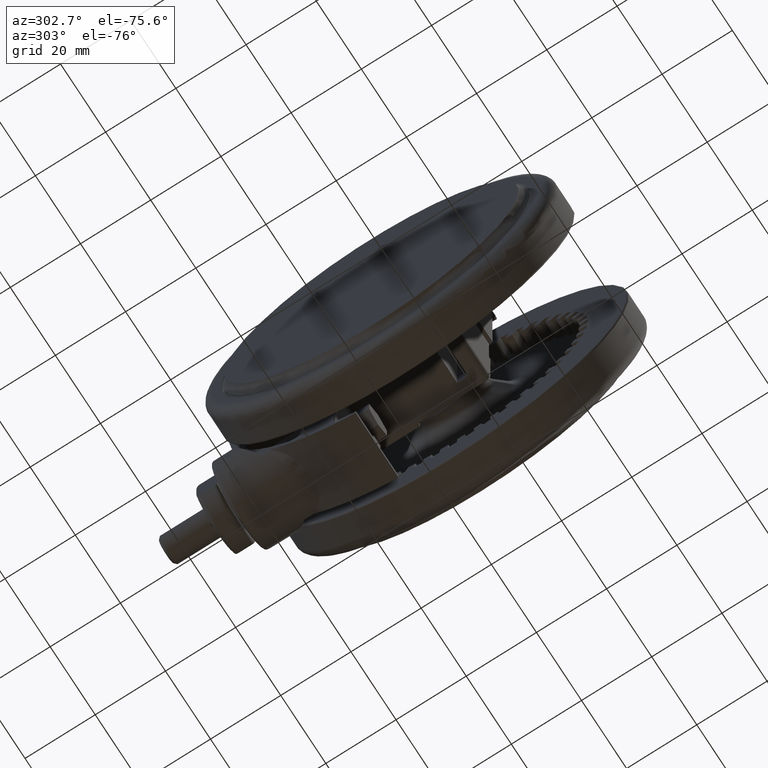
[diagram: clean part render]
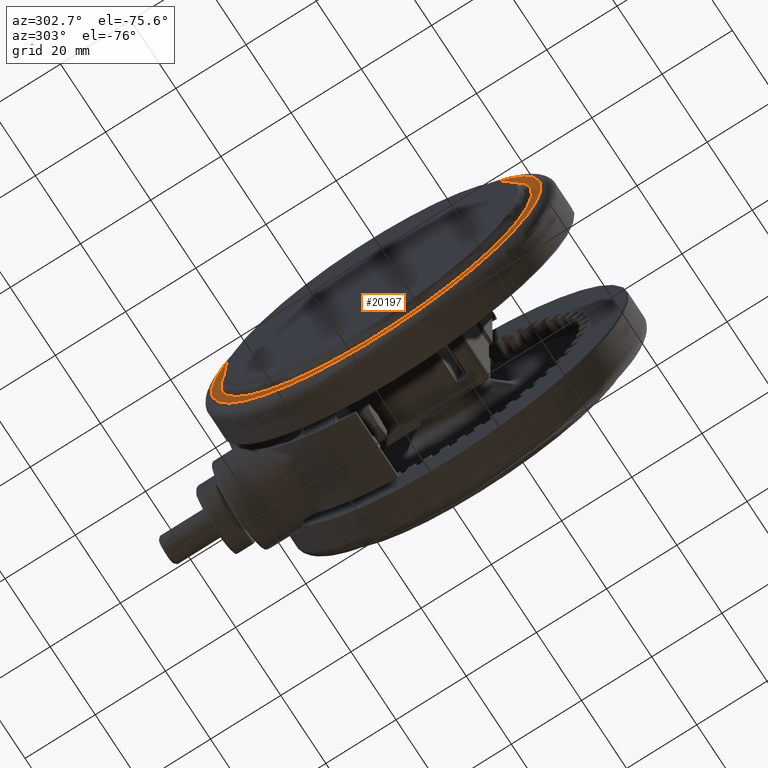
[diagram: same view with one face highlighted and labeled with its STEP entity id]
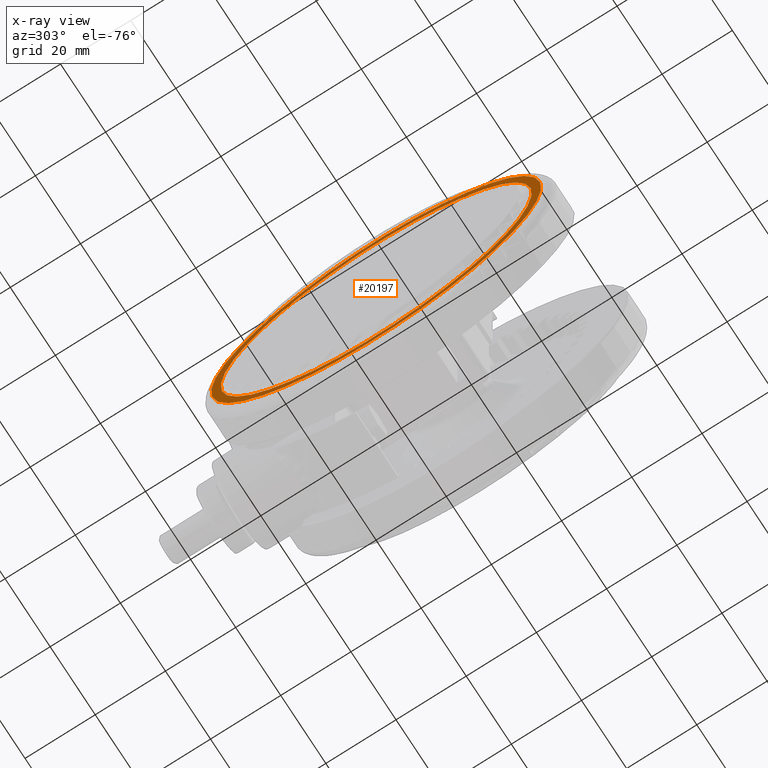
[diagram: x-ray of the same camera — body ghosted, the highlighted face saturated]
A machine part, auxiliary view. The second image highlights one B-rep face of the part: STEP entity #20197.
The next image is the same camera in x-ray: the body ghosted, the highlighted face saturated — about 0% of this face is hidden behind the body in this view.
In plain terms, the highlighted planar face has unit normal (1, -0, 0).
Its self-contained STEP definition (entity closure, byte-faithful):
#1316 = CARTESIAN_POINT ( 'NONE',  ( 1.387778780781445700E-014, -8.673617379884035500E-015, -46.49999999999994300 ) ) ;
#1468 = DIRECTION ( 'NONE',  ( -0.9587657712597810200, 0.2841974592789973700, 1.377383883340825900E-018 ) ) ;
#2839 = CARTESIAN_POINT ( 'NONE',  ( -42.47332366680828400, 12.58994744605957400, -46.49999999999995700 ) ) ;
#3015 = DIRECTION ( 'NONE',  ( 3.380642383533773200E-017, 2.202247500052102700E-016, 1.000000000000000000 ) ) ;
#5101 = DIRECTION ( 'NONE',  ( -0.9587657712597809100, 0.2841974592789973100, 0.0000000000000000000 ) ) ;
#10036 = CARTESIAN_POINT ( 'NONE',  ( 1.387778780781445700E-014, -8.673617379884035500E-015, -46.49999999999994300 ) ) ;
#10265 = VERTEX_POINT ( 'NONE', #2839 ) ;
#12357 = DIRECTION ( 'NONE',  ( -3.380642383533773200E-017, -2.202247500052102700E-016, -1.000000000000000000 ) ) ;
#12702 = PLANE ( 'NONE',  #25250 ) ;
#12708 = CIRCLE ( 'NONE', #16322, 47.00000000000000700 ) ;
#12714 = ORIENTED_EDGE ( 'NONE', *, *, #30862, .T. ) ;
#13825 = DIRECTION ( 'NONE',  ( -0.9587657712597810200, 0.2841974592789973700, 0.0000000000000000000 ) ) ;
#14429 = EDGE_LOOP ( 'NONE', ( #12714, #22675 ) ) ;
#16322 = AXIS2_PLACEMENT_3D ( 'NONE', #35038, #12357, #38818 ) ;
#20197 = ADVANCED_FACE ( 'NONE', ( #20443, #30567 ), #12702, .F. ) ;
#20443 = FACE_OUTER_BOUND ( 'NONE', #34633, .T. ) ;
#20641 = VERTEX_POINT ( 'NONE', #38118 ) ;
#21629 = CIRCLE ( 'NONE', #36870, 44.29999999999999700 ) ;
#22674 = CIRCLE ( 'NONE', #45684, 47.00000000000000700 ) ;
#22675 = ORIENTED_EDGE ( 'NONE', *, *, #48499, .T. ) ;
#24130 = DIRECTION ( 'NONE',  ( 6.405764716563957100E-017, 2.112576789350188500E-016, 1.000000000000000000 ) ) ;
#25250 = AXIS2_PLACEMENT_3D ( 'NONE', #46652, #24130, #1468 ) ;
#25663 = CARTESIAN_POINT ( 'NONE',  ( 1.387778780781445700E-014, -8.673617379884035500E-015, -46.49999999999994300 ) ) ;
#27785 = DIRECTION ( 'NONE',  ( -3.380642383533773200E-017, -2.202247500052102700E-016, -1.000000000000000000 ) ) ;
#27950 = EDGE_CURVE ( 'NONE', #45798, #35563, #22674, .T. ) ;
#29200 = AXIS2_PLACEMENT_3D ( 'NONE', #10036, #36513, #13825 ) ;
#29503 = DIRECTION ( 'NONE',  ( -0.9587657712597810200, 0.2841974592789973700, 0.0000000000000000000 ) ) ;
#30567 = FACE_BOUND ( 'NONE', #14429, .T. ) ;
#30862 = EDGE_CURVE ( 'NONE', #10265, #20641, #40385, .T. ) ;
#30886 = CARTESIAN_POINT ( 'NONE',  ( 45.06199124920972600, -13.35728058611288900, -46.50000000000000000 ) ) ;
#33277 = CARTESIAN_POINT ( 'NONE',  ( -45.06199124920969700, 13.35728058611286800, -46.50000000000000000 ) ) ;
#34633 = EDGE_LOOP ( 'NONE', ( #39420, #37015 ) ) ;
#35038 = CARTESIAN_POINT ( 'NONE',  ( 1.387778780781445700E-014, -8.673617379884035500E-015, -46.49999999999994300 ) ) ;
#35563 = VERTEX_POINT ( 'NONE', #33277 ) ;
#35769 = EDGE_CURVE ( 'NONE', #35563, #45798, #12708, .T. ) ;
#36513 = DIRECTION ( 'NONE',  ( 3.380642383533773200E-017, 2.202247500052102700E-016, 1.000000000000000000 ) ) ;
#36870 = AXIS2_PLACEMENT_3D ( 'NONE', #25663, #3015, #29503 ) ;
#37015 = ORIENTED_EDGE ( 'NONE', *, *, #27950, .T. ) ;
#38118 = CARTESIAN_POINT ( 'NONE',  ( 42.47332366680831200, -12.58994744605959700, -46.49999999999995700 ) ) ;
#38818 = DIRECTION ( 'NONE',  ( -0.9587657712597809100, 0.2841974592789973100, 0.0000000000000000000 ) ) ;
#39420 = ORIENTED_EDGE ( 'NONE', *, *, #35769, .T. ) ;
#40385 = CIRCLE ( 'NONE', #29200, 44.29999999999999700 ) ;
#45684 = AXIS2_PLACEMENT_3D ( 'NONE', #1316, #27785, #5101 ) ;
#45798 = VERTEX_POINT ( 'NONE', #30886 ) ;
#46652 = CARTESIAN_POINT ( 'NONE',  ( -12.50468820827586900, -42.18569393543036500, -46.49999999999993600 ) ) ;
#48499 = EDGE_CURVE ( 'NONE', #20641, #10265, #21629, .T. ) ;